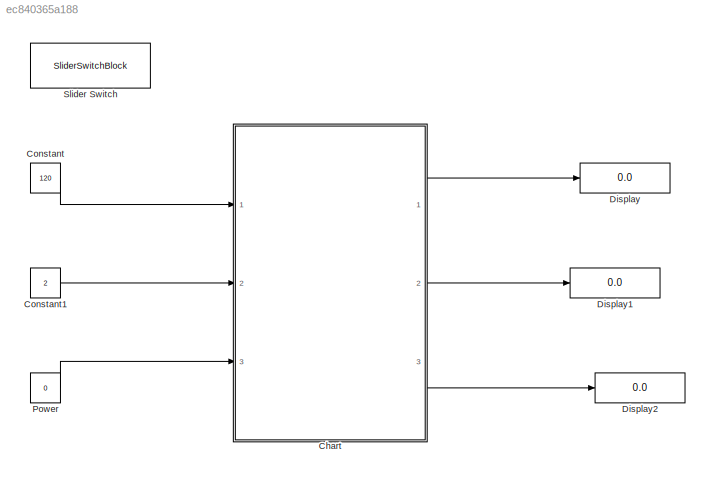
MODEL slx_ec840365a188
KIND model
CONFIG AbsTol = auto
CONFIG EnableMultiTasking = off
CONFIG FixedStep = auto
CONFIG MaxStep = auto
CONFIG MinStep = auto
CONFIG RelTol = 1e-3
CONFIG SampleTimeConstraint = Unconstrained
CONFIG SolverName = VariableStepAuto
CONFIG StartTime = 0.0
CONFIG StopTime = 10.0
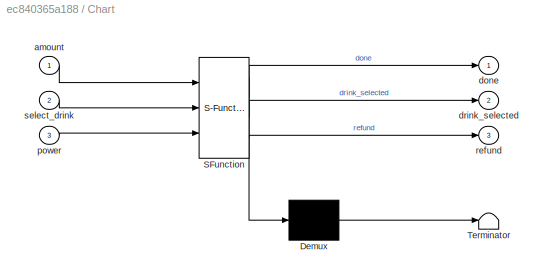
BLOCK [SubSystem] Chart
  ErrorFcn = Stateflow.Translate.translate
  PermitHierarchicalResolution = ExplicitOnly
  Ports = [3, 3]
  RequestExecContextInheritance = off
  SFBlockType = Chart
  TreatAsAtomicUnit = on
BLOCK [Demux] Chart/ Demux 
  Outputs = 1
  Ports = [1, 1]
BLOCK [S-Function] Chart/ SFunction 
  EnableBusSupport = on
  FunctionName = sf_sfun
  PortCounts = [3 4]
  Ports = [3, 4]
  SFcnIsStateOwnerBlock = off
  SFunctionDeploymentMode = off
  Tag = Stateflow S-Function 3
BLOCK [Terminator] Chart/ Terminator 
BLOCK [Inport] Chart/amount
BLOCK [Outport] Chart/done
BLOCK [Outport] Chart/drink_selected
  Port = 2
BLOCK [Inport] Chart/power
  Port = 3
BLOCK [Outport] Chart/refund
  Port = 3
BLOCK [Inport] Chart/select_drink
  Port = 2
BLOCK [Constant] Constant
  Value = 120
BLOCK [Constant] Constant1
  Value = 2
BLOCK [Display] Display
  Decimation = 1
  Ports = [1]
BLOCK [Display] Display1
  Decimation = 1
  Ports = [1]
BLOCK [Display] Display2
  Decimation = 1
  Ports = [1]
BLOCK [Constant] Power
  Value = 0
BLOCK [SliderSwitchBlock] Slider Switch
LINE Chart:1 -> Display:1
LINE Chart:2 -> Display1:1
LINE Chart:3 -> Display2:1
LINE Constant1:1 -> Chart:2
LINE Constant:1 -> Chart:1
LINE Power:1 -> Chart:3
CHART Chart states=7 transitions=12
  STATE_LABEL 'On'
  STATE_LABEL 'Idle'
  STATE_LABEL 'Wait'
  STATE_LABEL 'Wait_for_selection'
  STATE_LABEL 'Refund'
  STATE_LABEL 'Dispensing'
  STATE_LABEL '[amount>0&&done==0]'
  STATE_LABEL '[amount<drink_cost]'
  STATE_LABEL 'after(5,sec)'
  STATE_LABEL '[done==1]{refund=amount-drink_cost;}'
  STATE_LABEL '[amount>=drink_cost]{done=0;}'
  STATE_LABEL 'after(5,sec)'
  STATE_LABEL '[select_drink>0]{drink_selected=select_drink;}'
  STATE_LABEL 'after(2,sec){done=1;}'
  STATE_LABEL 'Idle'
  STATE_LABEL 'Wait'
  STATE_LABEL 'Wait_for_selection'
  STATE_LABEL 'Refund'
  STATE_LABEL 'Dispensing'
  STATE_LABEL 'Off'
CHART  states=0 transitions=0
